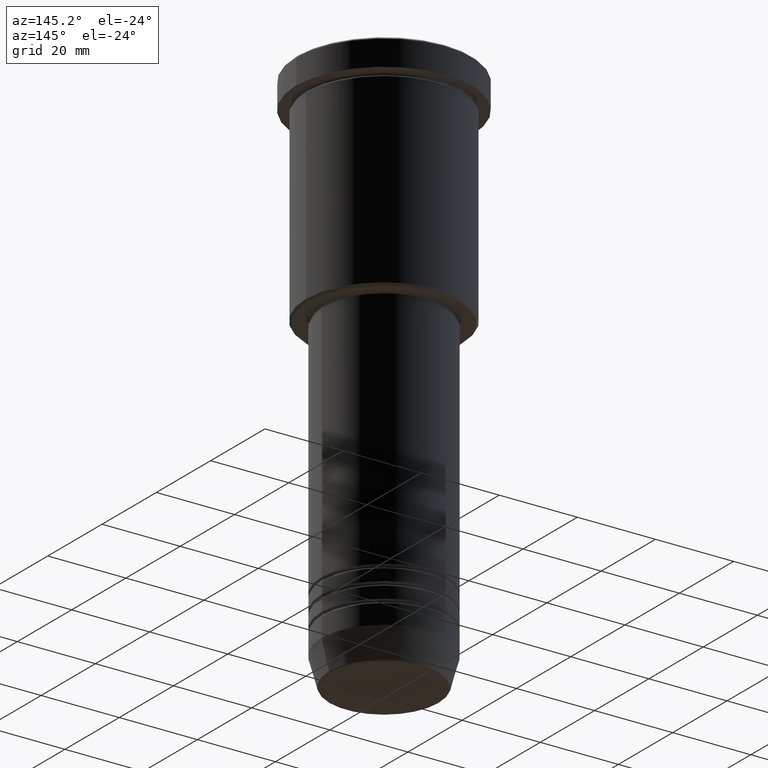
[diagram: clean part render]
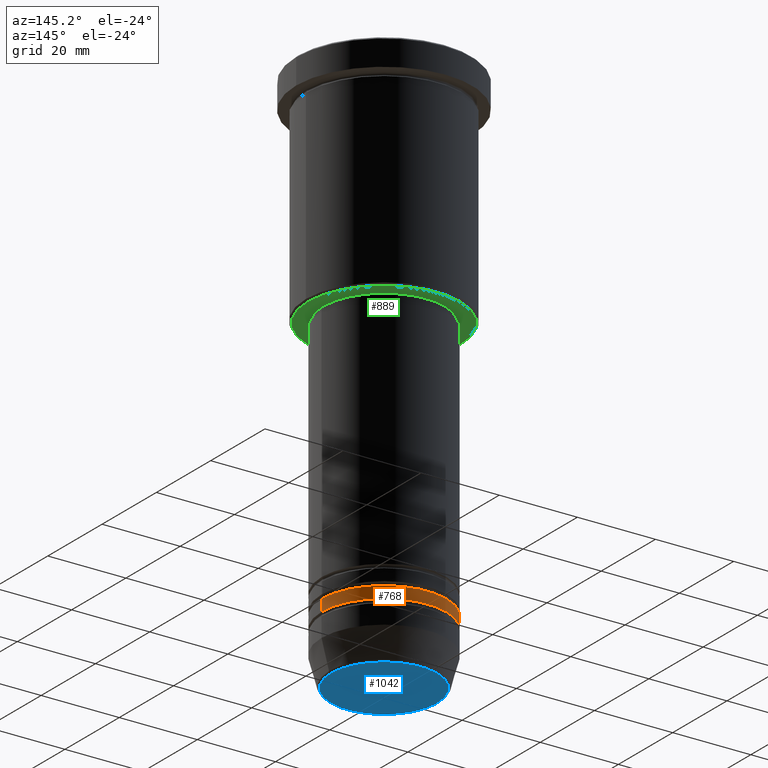
[diagram: same view with three faces highlighted in distinct colors, each labeled with its STEP entity id]
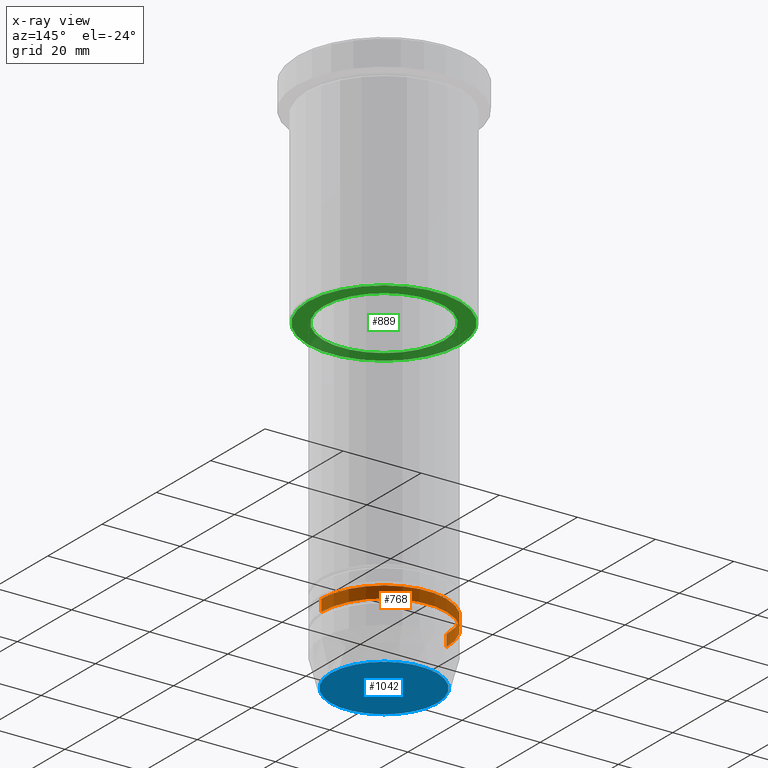
[diagram: x-ray of the same camera — body ghosted, the three highlighted faces saturated]
A machine part, auxiliary view with three faces highlighted in distinct colors.
The next image is the same camera in x-ray (body ghosted, the three faces saturated) — at least one of them is partly hidden behind the body in this view.
Their STEP definitions:

[orange] entity #768 — the highlighted cylindrical surface (partial cylindrical patch) has radius 16 mm, axis along (-0, -0, 1).
#3 = VERTEX_POINT ( 'NONE', #414 ) ;
#32 = CARTESIAN_POINT ( 'NONE',  ( 0.000000000000000000, 0.000000000000000000, -126.5000000000000000 ) ) ;
#116 = DIRECTION ( 'NONE',  ( -0.000000000000000000, -0.000000000000000000, 1.000000000000000000 ) ) ;
#130 = VERTEX_POINT ( 'NONE', #407 ) ;
#137 = DIRECTION ( 'NONE',  ( 1.000000000000000000, 0.000000000000000000, 0.000000000000000000 ) ) ;
#143 = CARTESIAN_POINT ( 'NONE',  ( 0.000000000000000000, 0.000000000000000000, 0.000000000000000000 ) ) ;
#168 = DIRECTION ( 'NONE',  ( -0.000000000000000000, -0.000000000000000000, 1.000000000000000000 ) ) ;
#183 = CARTESIAN_POINT ( 'NONE',  ( 16.00000000000000000, 0.000000000000000000, 0.000000000000000000 ) ) ;
#218 = CIRCLE ( 'NONE', #817, 16.00000000000000000 ) ;
#225 = CYLINDRICAL_SURFACE ( 'NONE', #359, 16.00000000000000000 ) ;
#271 = ORIENTED_EDGE ( 'NONE', *, *, #785, .F. ) ;
#277 = VECTOR ( 'NONE', #318, 1000.000000000000000 ) ;
#279 = EDGE_LOOP ( 'NONE', ( #493, #867, #271, #549 ) ) ;
#291 = EDGE_CURVE ( 'NONE', #130, #672, #1087, .T. ) ;
#313 = VECTOR ( 'NONE', #827, 1000.000000000000000 ) ;
#318 = DIRECTION ( 'NONE',  ( -0.000000000000000000, -0.000000000000000000, 1.000000000000000000 ) ) ;
#359 = AXIS2_PLACEMENT_3D ( 'NONE', #143, #1065, #690 ) ;
#407 = CARTESIAN_POINT ( 'NONE',  ( 16.00000000000000000, 0.000000000000000000, -126.5000000000000000 ) ) ;
#414 = CARTESIAN_POINT ( 'NONE',  ( -16.00000000000000000, 1.959434878635765131E-15, -126.5000000000000000 ) ) ;
#426 = LINE ( 'NONE', #784, #277 ) ;
#430 = DIRECTION ( 'NONE',  ( 1.000000000000000000, 0.000000000000000000, 0.000000000000000000 ) ) ;
#447 = CARTESIAN_POINT ( 'NONE',  ( 0.000000000000000000, 0.000000000000000000, -123.5000000000000000 ) ) ;
#493 = ORIENTED_EDGE ( 'NONE', *, *, #1108, .T. ) ;
#495 = CARTESIAN_POINT ( 'NONE',  ( -16.00000000000000000, 1.959434878635765131E-15, -123.5000000000000000 ) ) ;
#549 = ORIENTED_EDGE ( 'NONE', *, *, #291, .F. ) ;
#643 = EDGE_CURVE ( 'NONE', #3, #647, #426, .T. ) ;
#647 = VERTEX_POINT ( 'NONE', #495 ) ;
#672 = VERTEX_POINT ( 'NONE', #853 ) ;
#681 = AXIS2_PLACEMENT_3D ( 'NONE', #447, #168, #430 ) ;
#690 = DIRECTION ( 'NONE',  ( 1.000000000000000000, 0.000000000000000000, 0.000000000000000000 ) ) ;
#768 = ADVANCED_FACE ( 'NONE', ( #863 ), #225, .T. ) ;
#784 = CARTESIAN_POINT ( 'NONE',  ( -16.00000000000000000, 1.959434878635765131E-15, 0.000000000000000000 ) ) ;
#785 = EDGE_CURVE ( 'NONE', #672, #647, #1029, .T. ) ;
#817 = AXIS2_PLACEMENT_3D ( 'NONE', #32, #116, #137 ) ;
#827 = DIRECTION ( 'NONE',  ( -0.000000000000000000, -0.000000000000000000, 1.000000000000000000 ) ) ;
#853 = CARTESIAN_POINT ( 'NONE',  ( 16.00000000000000000, 0.000000000000000000, -123.5000000000000000 ) ) ;
#863 = FACE_OUTER_BOUND ( 'NONE', #279, .T. ) ;
#867 = ORIENTED_EDGE ( 'NONE', *, *, #643, .T. ) ;
#1029 = CIRCLE ( 'NONE', #681, 16.00000000000000000 ) ;
#1065 = DIRECTION ( 'NONE',  ( -0.000000000000000000, -0.000000000000000000, 1.000000000000000000 ) ) ;
#1087 = LINE ( 'NONE', #183, #313 ) ;
#1108 = EDGE_CURVE ( 'NONE', #130, #3, #218, .T. ) ;

[blue] entity #1042 — the highlighted planar face has unit normal (0, -0, 1).
#6 = CARTESIAN_POINT ( 'NONE',  ( 0.000000000000000000, 0.000000000000000000, -140.0000000000000000 ) ) ;
#177 = FACE_OUTER_BOUND ( 'NONE', #204, .T. ) ;
#185 = PLANE ( 'NONE',  #872 ) ;
#186 = CARTESIAN_POINT ( 'NONE',  ( 0.000000000000000000, 0.000000000000000000, -140.0000000000000000 ) ) ;
#204 = EDGE_LOOP ( 'NONE', ( #578, #953 ) ) ;
#299 = EDGE_CURVE ( 'NONE', #1101, #422, #545, .T. ) ;
#366 = CARTESIAN_POINT ( 'NONE',  ( -13.60671756277709399, 1.695915260300171258E-15, -140.0000000000000000 ) ) ;
#402 = EDGE_CURVE ( 'NONE', #422, #1101, #1107, .T. ) ;
#422 = VERTEX_POINT ( 'NONE', #366 ) ;
#437 = AXIS2_PLACEMENT_3D ( 'NONE', #6, #743, #985 ) ;
#455 = DIRECTION ( 'NONE',  ( 0.000000000000000000, -0.000000000000000000, 1.000000000000000000 ) ) ;
#538 = DIRECTION ( 'NONE',  ( 1.000000000000000000, 0.000000000000000000, 0.000000000000000000 ) ) ;
#545 = CIRCLE ( 'NONE', #437, 13.60671756277709399 ) ;
#551 = DIRECTION ( 'NONE',  ( 0.000000000000000000, 0.000000000000000000, -1.000000000000000000 ) ) ;
#578 = ORIENTED_EDGE ( 'NONE', *, *, #299, .T. ) ;
#728 = DIRECTION ( 'NONE',  ( 1.000000000000000000, 0.000000000000000000, 0.000000000000000000 ) ) ;
#743 = DIRECTION ( 'NONE',  ( 0.000000000000000000, 0.000000000000000000, -1.000000000000000000 ) ) ;
#757 = CARTESIAN_POINT ( 'NONE',  ( 13.60671756277709399, 0.000000000000000000, -140.0000000000000000 ) ) ;
#872 = AXIS2_PLACEMENT_3D ( 'NONE', #913, #455, #538 ) ;
#913 = CARTESIAN_POINT ( 'NONE',  ( 0.000000000000000000, 0.000000000000000000, -140.0000000000000000 ) ) ;
#937 = AXIS2_PLACEMENT_3D ( 'NONE', #186, #551, #728 ) ;
#953 = ORIENTED_EDGE ( 'NONE', *, *, #402, .T. ) ;
#985 = DIRECTION ( 'NONE',  ( 1.000000000000000000, 0.000000000000000000, 0.000000000000000000 ) ) ;
#1042 = ADVANCED_FACE ( 'NONE', ( #177 ), #185, .F. ) ;
#1101 = VERTEX_POINT ( 'NONE', #757 ) ;
#1107 = CIRCLE ( 'NONE', #937, 13.60671756277709399 ) ;

[green] entity #889 — the highlighted planar face has unit normal (0, 0, -1).
#33 = DIRECTION ( 'NONE',  ( 0.000000000000000000, 0.000000000000000000, -1.000000000000000000 ) ) ;
#55 = DIRECTION ( 'NONE',  ( 0.000000000000000000, 0.000000000000000000, -1.000000000000000000 ) ) ;
#62 = PLANE ( 'NONE',  #487 ) ;
#144 = DIRECTION ( 'NONE',  ( 0.000000000000000000, 0.000000000000000000, -1.000000000000000000 ) ) ;
#203 = CARTESIAN_POINT ( 'NONE',  ( 0.000000000000000000, 0.000000000000000000, -56.00000000000000711 ) ) ;
#231 = VERTEX_POINT ( 'NONE', #918 ) ;
#235 = AXIS2_PLACEMENT_3D ( 'NONE', #769, #673, #749 ) ;
#237 = DIRECTION ( 'NONE',  ( -0.000000000000000000, -0.000000000000000000, 1.000000000000000000 ) ) ;
#287 = VERTEX_POINT ( 'NONE', #920 ) ;
#348 = FACE_OUTER_BOUND ( 'NONE', #498, .T. ) ;
#349 = VERTEX_POINT ( 'NONE', #654 ) ;
#378 = EDGE_CURVE ( 'NONE', #482, #287, #695, .T. ) ;
#433 = CARTESIAN_POINT ( 'NONE',  ( -19.50000000000003197, 2.418677428316025092E-15, -56.00000000000000711 ) ) ;
#443 = FACE_BOUND ( 'NONE', #1138, .T. ) ;
#482 = VERTEX_POINT ( 'NONE', #433 ) ;
#487 = AXIS2_PLACEMENT_3D ( 'NONE', #875, #55, #706 ) ;
#498 = EDGE_LOOP ( 'NONE', ( #1062, #1054 ) ) ;
#513 = CARTESIAN_POINT ( 'NONE',  ( 0.000000000000000000, 0.000000000000000000, -56.00000000000000711 ) ) ;
#605 = DIRECTION ( 'NONE',  ( 1.000000000000000000, 0.000000000000000000, 0.000000000000000000 ) ) ;
#607 = ORIENTED_EDGE ( 'NONE', *, *, #1176, .T. ) ;
#654 = CARTESIAN_POINT ( 'NONE',  ( 15.50000000000000000, 0.000000000000000000, -56.00000000000000711 ) ) ;
#673 = DIRECTION ( 'NONE',  ( -0.000000000000000000, -0.000000000000000000, 1.000000000000000000 ) ) ;
#695 = CIRCLE ( 'NONE', #1173, 19.50000000000003197 ) ;
#706 = DIRECTION ( 'NONE',  ( -1.000000000000000000, 0.000000000000000000, -0.000000000000000000 ) ) ;
#707 = EDGE_CURVE ( 'NONE', #287, #482, #1129, .T. ) ;
#708 = DIRECTION ( 'NONE',  ( -1.000000000000000000, 0.000000000000000000, 0.000000000000000000 ) ) ;
#712 = CARTESIAN_POINT ( 'NONE',  ( 0.000000000000000000, 0.000000000000000000, -56.00000000000000711 ) ) ;
#738 = CIRCLE ( 'NONE', #235, 15.50000000000000000 ) ;
#749 = DIRECTION ( 'NONE',  ( 1.000000000000000000, 0.000000000000000000, 0.000000000000000000 ) ) ;
#758 = AXIS2_PLACEMENT_3D ( 'NONE', #712, #237, #605 ) ;
#769 = CARTESIAN_POINT ( 'NONE',  ( 0.000000000000000000, 0.000000000000000000, -56.00000000000000711 ) ) ;
#875 = CARTESIAN_POINT ( 'NONE',  ( 0.000000000000000000, 20.00000000000000355, -56.00000000000000711 ) ) ;
#889 = ADVANCED_FACE ( 'NONE', ( #348, #443 ), #62, .T. ) ;
#902 = EDGE_CURVE ( 'NONE', #349, #231, #924, .T. ) ;
#918 = CARTESIAN_POINT ( 'NONE',  ( -15.50000000000000000, 1.898202538678397557E-15, -56.00000000000000711 ) ) ;
#920 = CARTESIAN_POINT ( 'NONE',  ( 19.50000000000003197, 0.000000000000000000, -56.00000000000000711 ) ) ;
#924 = CIRCLE ( 'NONE', #758, 15.50000000000000000 ) ;
#1013 = DIRECTION ( 'NONE',  ( -1.000000000000000000, 0.000000000000000000, 0.000000000000000000 ) ) ;
#1054 = ORIENTED_EDGE ( 'NONE', *, *, #378, .T. ) ;
#1062 = ORIENTED_EDGE ( 'NONE', *, *, #707, .T. ) ;
#1074 = ORIENTED_EDGE ( 'NONE', *, *, #902, .T. ) ;
#1092 = AXIS2_PLACEMENT_3D ( 'NONE', #203, #33, #1013 ) ;
#1129 = CIRCLE ( 'NONE', #1092, 19.50000000000003197 ) ;
#1138 = EDGE_LOOP ( 'NONE', ( #1074, #607 ) ) ;
#1173 = AXIS2_PLACEMENT_3D ( 'NONE', #513, #144, #708 ) ;
#1176 = EDGE_CURVE ( 'NONE', #231, #349, #738, .T. ) ;